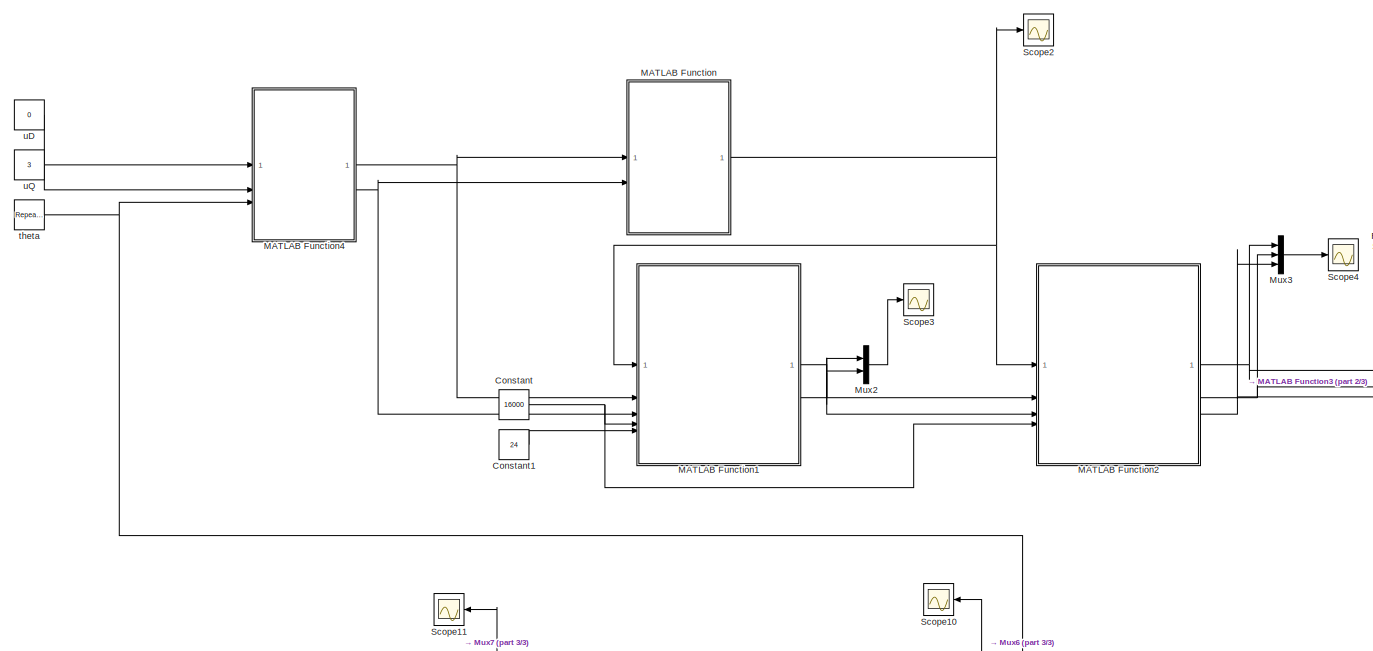
[diagram: root canvas - part 1/3, middle left region]
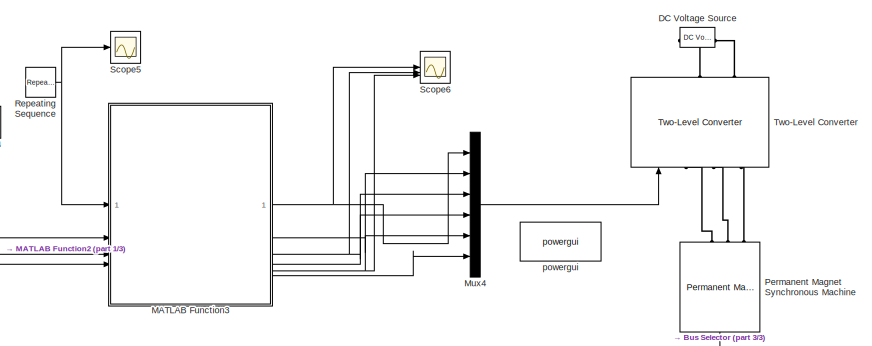
[diagram: root canvas - part 2/3, middle right region]
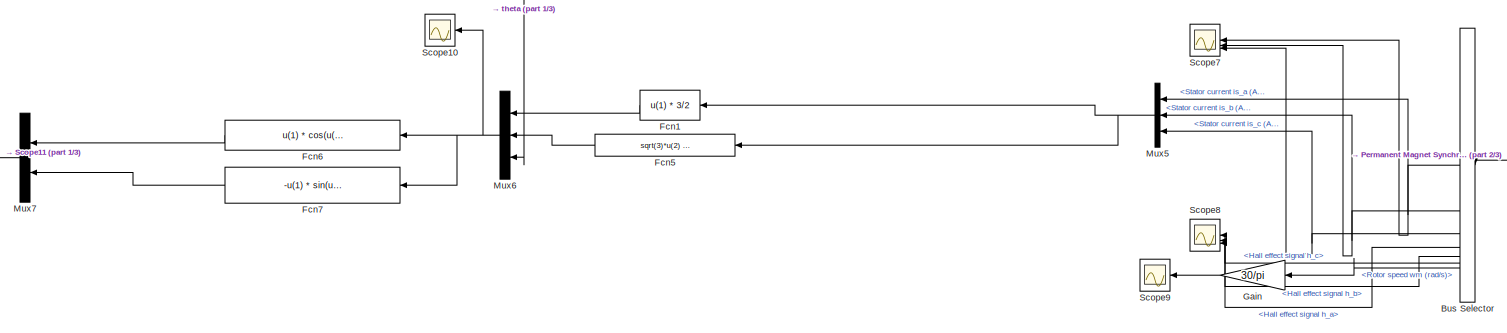
[diagram: root canvas - part 3/3, bottom center region]
MODEL slx_2b64288833d0
KIND model
CONFIG AbsTol = auto
CONFIG EnableMultiTasking = off
CONFIG FixedStep = 0.000001
CONFIG MaxStep = auto
CONFIG MinStep = auto
CONFIG RelTol = 1e-3
CONFIG SampleTimeConstraint = Unconstrained
CONFIG SolverName = FixedStepDiscrete
CONFIG StartTime = 0.0
CONFIG StopTime = 2
BLOCK [BusSelector] Bus Selector
  OutputSignals = Stator current is_a (A),Stator current is_b (A),Stator current is_c (A),Hall effect signal h_a,Hall effect signal h_b,Hall effect signal h_c,Rotor speed wm (rad/s)
BLOCK [Constant] Constant
  Value = 16000
BLOCK [Constant] Constant1
  Value = 24
BLOCK [Reference] DC Voltage Source  REF=spsDCVoltageSourceLib/DC Voltage Source
  LibrarySourceBlock = sps_lib/Sources/DC Voltage Source
  NameLocation = right
  SourceBlock = spsDCVoltageSourceLib/DC Voltage Source
  SourceType = DC Voltage Source
BLOCK [Fcn] Fcn1
  Expr = u(1) * 3/2
BLOCK [Fcn] Fcn5
  Expr = sqrt(3)*u(2) + sqrt(3)*u(1)/2
BLOCK [Fcn] Fcn6
  Expr = u(1) * cos(u(3)) + u(2)*sin(u(3))
BLOCK [Fcn] Fcn7
  Expr = -u(1) * sin(u(3)) + u(2)*cos(u(3))
BLOCK [Gain] Gain
  Gain = 30/pi
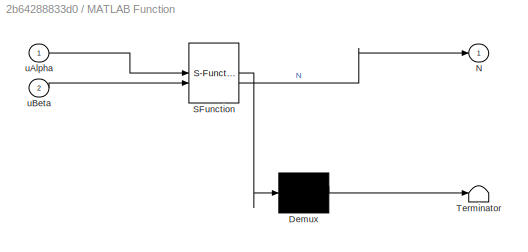
BLOCK [SubSystem] MATLAB Function
  ErrorFcn = Stateflow.Translate.translate
  PermitHierarchicalResolution = ExplicitOnly
  SFBlockType = MATLAB Function
  TreatAsAtomicUnit = on
BLOCK [Demux] MATLAB Function/ Demux 
  Outputs = 1
BLOCK [S-Function] MATLAB Function/ SFunction 
  EnableBusSupport = on
  FunctionName = sf_sfun
  PortCounts = [2 2]
  SFcnIsStateOwnerBlock = off
  SFunctionDeploymentMode = off
  Tag = Stateflow S-Function 2
BLOCK [Terminator] MATLAB Function/ Terminator 
BLOCK [Outport] MATLAB Function/N
BLOCK [Inport] MATLAB Function/uAlpha
BLOCK [Inport] MATLAB Function/uBeta
  Port = 2
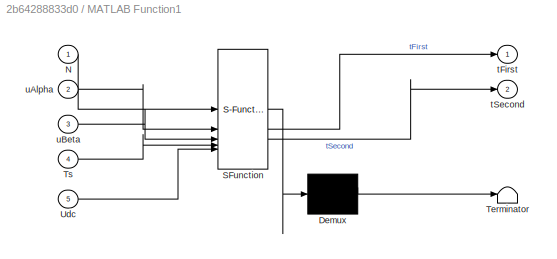
BLOCK [SubSystem] MATLAB Function1
  ErrorFcn = Stateflow.Translate.translate
  PermitHierarchicalResolution = ExplicitOnly
  SFBlockType = MATLAB Function
  TreatAsAtomicUnit = on
BLOCK [Demux] MATLAB Function1/ Demux 
  Outputs = 1
BLOCK [S-Function] MATLAB Function1/ SFunction 
  EnableBusSupport = on
  FunctionName = sf_sfun
  PortCounts = [5 3]
  SFcnIsStateOwnerBlock = off
  SFunctionDeploymentMode = off
  Tag = Stateflow S-Function 1
BLOCK [Terminator] MATLAB Function1/ Terminator 
BLOCK [Inport] MATLAB Function1/N
BLOCK [Inport] MATLAB Function1/Ts
  Port = 4
BLOCK [Inport] MATLAB Function1/Udc
  Port = 5
BLOCK [Outport] MATLAB Function1/tFirst
BLOCK [Outport] MATLAB Function1/tSecond
  Port = 2
BLOCK [Inport] MATLAB Function1/uAlpha
  Port = 2
BLOCK [Inport] MATLAB Function1/uBeta
  Port = 3
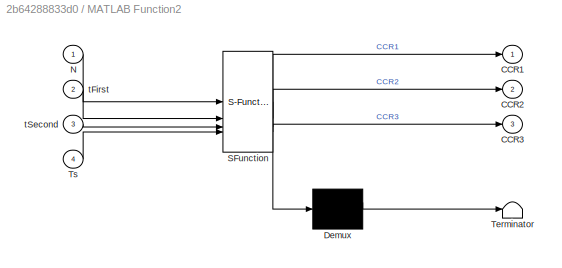
BLOCK [SubSystem] MATLAB Function2
  ErrorFcn = Stateflow.Translate.translate
  PermitHierarchicalResolution = ExplicitOnly
  SFBlockType = MATLAB Function
  TreatAsAtomicUnit = on
BLOCK [Demux] MATLAB Function2/ Demux 
  Outputs = 1
BLOCK [S-Function] MATLAB Function2/ SFunction 
  EnableBusSupport = on
  FunctionName = sf_sfun
  PortCounts = [4 4]
  SFcnIsStateOwnerBlock = off
  SFunctionDeploymentMode = off
  Tag = Stateflow S-Function 3
BLOCK [Terminator] MATLAB Function2/ Terminator 
BLOCK [Outport] MATLAB Function2/CCR1
BLOCK [Outport] MATLAB Function2/CCR2
  Port = 2
BLOCK [Outport] MATLAB Function2/CCR3
  Port = 3
BLOCK [Inport] MATLAB Function2/N
BLOCK [Inport] MATLAB Function2/Ts
  Port = 4
BLOCK [Inport] MATLAB Function2/tFirst
  Port = 2
BLOCK [Inport] MATLAB Function2/tSecond
  Port = 3
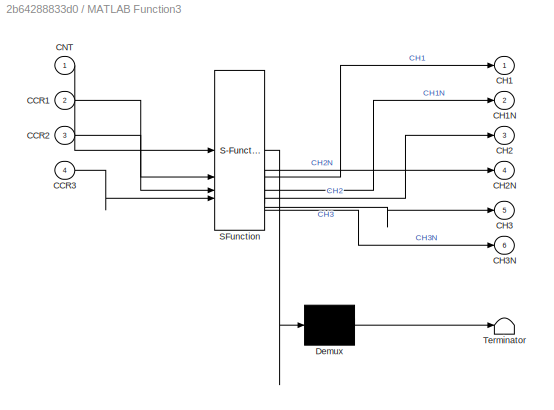
BLOCK [SubSystem] MATLAB Function3
  ErrorFcn = Stateflow.Translate.translate
  PermitHierarchicalResolution = ExplicitOnly
  SFBlockType = MATLAB Function
  TreatAsAtomicUnit = on
BLOCK [Demux] MATLAB Function3/ Demux 
  Outputs = 1
BLOCK [S-Function] MATLAB Function3/ SFunction 
  EnableBusSupport = on
  FunctionName = sf_sfun
  PortCounts = [4 7]
  SFcnIsStateOwnerBlock = off
  SFunctionDeploymentMode = off
  Tag = Stateflow S-Function 4
BLOCK [Terminator] MATLAB Function3/ Terminator 
BLOCK [Inport] MATLAB Function3/CCR1
  Port = 2
BLOCK [Inport] MATLAB Function3/CCR2
  Port = 3
BLOCK [Inport] MATLAB Function3/CCR3
  Port = 4
BLOCK [Outport] MATLAB Function3/CH1
BLOCK [Outport] MATLAB Function3/CH1N
  Port = 2
BLOCK [Outport] MATLAB Function3/CH2
  Port = 3
BLOCK [Outport] MATLAB Function3/CH2N
  Port = 4
BLOCK [Outport] MATLAB Function3/CH3
  Port = 5
BLOCK [Outport] MATLAB Function3/CH3N
  Port = 6
BLOCK [Inport] MATLAB Function3/CNT
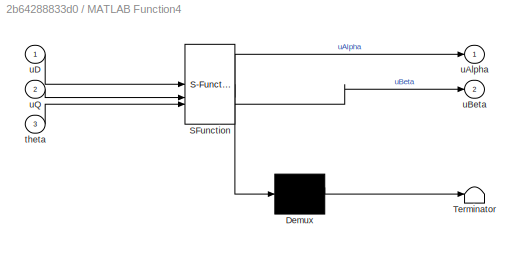
BLOCK [SubSystem] MATLAB Function4
  ErrorFcn = Stateflow.Translate.translate
  PermitHierarchicalResolution = ExplicitOnly
  SFBlockType = MATLAB Function
  TreatAsAtomicUnit = on
BLOCK [Demux] MATLAB Function4/ Demux 
  Outputs = 1
BLOCK [S-Function] MATLAB Function4/ SFunction 
  EnableBusSupport = on
  FunctionName = sf_sfun
  PortCounts = [3 3]
  SFcnIsStateOwnerBlock = off
  SFunctionDeploymentMode = off
  Tag = Stateflow S-Function 5
BLOCK [Terminator] MATLAB Function4/ Terminator 
BLOCK [Inport] MATLAB Function4/theta
  Port = 3
BLOCK [Outport] MATLAB Function4/uAlpha
BLOCK [Outport] MATLAB Function4/uBeta
  Port = 2
BLOCK [Inport] MATLAB Function4/uD
BLOCK [Inport] MATLAB Function4/uQ
  Port = 2
BLOCK [Mux] Mux2
  DisplayOption = bar
  Inputs = 2
BLOCK [Mux] Mux3
  DisplayOption = bar
  Inputs = 3
BLOCK [Mux] Mux4
  DisplayOption = bar
  Inputs = 6
BLOCK [Mux] Mux5
  DisplayOption = bar
  Inputs = 3
BLOCK [Mux] Mux6
  DisplayOption = bar
  Inputs = 3
BLOCK [Mux] Mux7
  DisplayOption = bar
  Inputs = 2
BLOCK [Reference] Permanent Magnet Synchronous Machine  REF=spsPermanentMagnetSynchronousMachineLib/Permanent Magnet
Synchronous Machine
  LibrarySourceBlock = sps_lib/Electrical Machines/Permanent Magnet\nSynchronous Machine
  NameLocation = left
  SourceBlock = spsPermanentMagnetSynchronousMachineLib/Permanent Magnet\nSynchronous Machine
  SourceType = Permanent Magnet Synchronous Machine
BLOCK [Reference] Repeating Sequence  REF=simulink/Sources/Repeating
Sequence
  SourceBlock = simulink/Sources/Repeating\nSequence
  SourceType = Repeating table
BLOCK [Scope] Scope10
  Floating = off
  NumInputPorts = 1
  ScopeSpecificationString = Simulink.scopes.TimeScopeBlockCfg('CurrentConfiguration', extmgr.ConfigurationSet(extmgr.Configuration('Core','General UI',true),extmgr.Configuration('Core','Source UI',true),extmgr.Configuration('Sources','WiredSimulink',true,'DataLoggingVariableName','ScopeData5'),extmgr.Configuration('Visuals','Time Domain',true,'SerializedDisplays',{struct('MinYLimReal','-100','MaxYLimReal','100','YLabelReal',...<+1417ch>
BLOCK [Scope] Scope11
  Floating = off
  NumInputPorts = 1
  ScopeSpecificationString = Simulink.scopes.TimeScopeBlockCfg('CurrentConfiguration', extmgr.ConfigurationSet(extmgr.Configuration('Core','General UI',true),extmgr.Configuration('Core','Source UI',true),extmgr.Configuration('Sources','WiredSimulink',true,'DataLoggingVariableName','ScopeData6'),extmgr.Configuration('Visuals','Time Domain',true,'SerializedDisplays',{struct('MinYLimReal','-100','MaxYLimReal','100','YLabelReal',...<+1408ch>
BLOCK [Scope] Scope2
  Floating = off
  NumInputPorts = 1
  ScopeSpecificationString = Simulink.scopes.TimeScopeBlockCfg('CurrentConfiguration', extmgr.ConfigurationSet(extmgr.Configuration('Core','General UI',true),extmgr.Configuration('Core','Source UI',true),extmgr.Configuration('Sources','WiredSimulink',true,'DataLoggingVariableName','ScopeData2'),extmgr.Configuration('Visuals','Time Domain',true,'SerializedDisplays',{struct('MinYLimReal','0.375','MaxYLimReal','6.625','YLabelRea...<+1411ch>
BLOCK [Scope] Scope3
  Floating = off
  NumInputPorts = 1
  ScopeSpecificationString = Simulink.scopes.TimeScopeBlockCfg('CurrentConfiguration', extmgr.ConfigurationSet(extmgr.Configuration('Core','General UI',true),extmgr.Configuration('Core','Source UI',true),extmgr.Configuration('Sources','WiredSimulink',true,'DataLoggingVariableName','ScopeData3'),extmgr.Configuration('Visuals','Time Domain',true,'SerializedDisplays',{struct('MinYLimReal','-187.5','MaxYLimReal','1687.5','YLabelR...<+1430ch>
BLOCK [Scope] Scope4
  Floating = off
  NumInputPorts = 1
  ScopeSpecificationString = Simulink.scopes.TimeScopeBlockCfg('CurrentConfiguration', extmgr.ConfigurationSet(extmgr.Configuration('Core','General UI',true),extmgr.Configuration('Core','Source UI',true),extmgr.Configuration('Sources','WiredSimulink',true,'DataLoggingVariableName','ScopeData1'),extmgr.Configuration('Visuals','Time Domain',true,'SerializedDisplays',{struct('MinYLimReal','1458.73412','MaxYLimReal','2541.26588',...<+1531ch>
BLOCK [Scope] Scope5
  Floating = off
  NumInputPorts = 1
  ScopeSpecificationString = Simulink.scopes.TimeScopeBlockCfg('CurrentConfiguration', extmgr.ConfigurationSet(extmgr.Configuration('Core','General UI',true),extmgr.Configuration('Core','Source UI',true),extmgr.Configuration('Sources','WiredSimulink',true,'DataLoggingVariableName','ScopeData2'),extmgr.Configuration('Visuals','Time Domain',true,'SerializedDisplays',{struct('MinYLimReal','-447.35198','MaxYLimReal','8927.64802',...<+1441ch>
BLOCK [Scope] Scope6
  Floating = off
  NumInputPorts = 3
  ScopeSpecificationString = Simulink.scopes.TimeScopeBlockCfg('CurrentConfiguration', extmgr.ConfigurationSet(extmgr.Configuration('Core','General UI',true),extmgr.Configuration('Core','Source UI',true),extmgr.Configuration('Sources','WiredSimulink',true,'DataLoggingVariableName','ScopeData1'),extmgr.Configuration('Visuals','Time Domain',true,'SerializedDisplays',{struct('MinYLimReal','0.00000','MaxYLimReal','2.00000','YLabe...<+2876ch>
BLOCK [Scope] Scope7
  Floating = off
  NumInputPorts = 3
  ScopeSpecificationString = Simulink.scopes.TimeScopeBlockCfg('CurrentConfiguration', extmgr.ConfigurationSet(extmgr.Configuration('Core','General UI',true),extmgr.Configuration('Core','Source UI',true),extmgr.Configuration('Sources','WiredSimulink',true,'DataLoggingVariableName','ScopeData2'),extmgr.Configuration('Visuals','Time Domain',true,'SerializedDisplays',{struct('MinYLimReal','-54.06556','MaxYLimReal','60.82321','YL...<+1473ch>
BLOCK [Scope] Scope8
  Floating = off
  NumInputPorts = 3
  ScopeSpecificationString = Simulink.scopes.TimeScopeBlockCfg('CurrentConfiguration', extmgr.ConfigurationSet(extmgr.Configuration('Core','General UI',true),extmgr.Configuration('Core','Source UI',true),extmgr.Configuration('Sources','WiredSimulink',true,'DataLoggingVariableName','ScopeData3'),extmgr.Configuration('Visuals','Time Domain',true,'SerializedDisplays',{struct('MinYLimReal','-0.125','MaxYLimReal','1.125','YLabelRe...<+1425ch>
BLOCK [Scope] Scope9
  Floating = off
  NumInputPorts = 1
  ScopeSpecificationString = Simulink.scopes.TimeScopeBlockCfg('CurrentConfiguration', extmgr.ConfigurationSet(extmgr.Configuration('Core','General UI',true),extmgr.Configuration('Core','Source UI',true),extmgr.Configuration('Sources','WiredSimulink',true,'DataLoggingVariableName','ScopeData4'),extmgr.Configuration('Visuals','Time Domain',true,'SerializedDisplays',{struct('MinYLimReal','0','MaxYLimReal','100','YLabelReal','',...<+1395ch>
BLOCK [Reference] Two-Level Converter  REF=spsTwoLevelConverterLib/Two-Level Converter
  LibrarySourceBlock = sps_lib/Power Electronics/Two-Level Converter
  NameLocation = right
  SourceBlock = spsTwoLevelConverterLib/Two-Level Converter
  SourceType = Two-Level Converter
BLOCK [Reference] powergui  REF=sps_lib/powergui
  LibrarySourceBlock = sps_lib/powergui
  Priority = 1
  SourceBlock = sps_lib/powergui
  SourceType = PSB option menu block
BLOCK [Reference] theta   REF=simulink/Sources/Repeating
Sequence
  SourceBlock = simulink/Sources/Repeating\nSequence
  SourceType = Repeating table
BLOCK [Constant] uD
  Value = 0
BLOCK [Constant] uQ
  Value = 3
NET Bus Selector:1 -> Mux5:1, Scope7:1
NET Bus Selector:2 -> Mux5:2, Scope7:2
NET Bus Selector:3 -> Mux5:3, Scope7:3
LINE Bus Selector:4 -> Scope8:1
LINE Bus Selector:5 -> Scope8:2
LINE Bus Selector:6 -> Scope8:3
LINE Bus Selector:7 -> Gain:1
LINE Constant1:1 -> MATLAB Function1:5
NET Constant:1 -> MATLAB Function1:4, MATLAB Function2:4
LINE Fcn1:1 -> Mux6:1
LINE Fcn5:1 -> Mux6:2
LINE Fcn6:1 -> Mux7:1
LINE Fcn7:1 -> Mux7:2
LINE Gain:1 -> Scope9:1
NET MATLAB Function1:1 -> MATLAB Function2:2, Mux2:1
NET MATLAB Function1:2 -> MATLAB Function2:3, Mux2:2
NET MATLAB Function2:1 -> MATLAB Function3:2, Mux3:1
NET MATLAB Function2:2 -> MATLAB Function3:3, Mux3:2
NET MATLAB Function2:3 -> MATLAB Function3:4, Mux3:3
NET MATLAB Function3:1 -> Mux4:1, Scope6:1
LINE MATLAB Function3:2 -> Mux4:2
NET MATLAB Function3:3 -> Mux4:3, Scope6:2
LINE MATLAB Function3:4 -> Mux4:4
NET MATLAB Function3:5 -> Mux4:5, Scope6:3
LINE MATLAB Function3:6 -> Mux4:6
NET MATLAB Function4:1 -> MATLAB Function1:2, MATLAB Function:1
NET MATLAB Function4:2 -> MATLAB Function1:3, MATLAB Function:2
NET MATLAB Function:1 -> MATLAB Function1:1, MATLAB Function2:1, Scope2:1
LINE Mux2:1 -> Scope3:1
LINE Mux3:1 -> Scope4:1
LINE Mux4:1 -> Two-Level Converter:1
NET Mux5:1 -> Fcn1:1, Fcn5:1
NET Mux6:1 -> Fcn6:1, Fcn7:1, Scope10:1
LINE Mux7:1 -> Scope11:1
LINE Permanent Magnet Synchronous Machine:1 -> Bus Selector:1
NET Repeating Sequence:1 -> MATLAB Function3:1, Scope5:1
NET theta :1 -> MATLAB Function4:3, Mux6:3
LINE uD:1 -> MATLAB Function4:1
LINE uQ:1 -> MATLAB Function4:2
PLINE DC Voltage Source:LConn1 -- Two-Level Converter:RConn2
PLINE DC Voltage Source:RConn1 -- Two-Level Converter:RConn1
PLINE Permanent Magnet Synchronous Machine:LConn1 -- Two-Level Converter:LConn1
PLINE Permanent Magnet Synchronous Machine:LConn2 -- Two-Level Converter:LConn2
PLINE Permanent Magnet Synchronous Machine:LConn3 -- Two-Level Converter:LConn3
note: NET lines group one-source signal fan-out (src -> all destinations, sorted); 1:1 wires keep LINE
CHART MATLAB Function1 states=1 transitions=1
  STATE_LABEL 'eML_blk_kernel()'
  STATE_LABEL 'SCRIPT:\nfunction [tFirst, tSecond] = vectorCalculate(N, uAlpha, uBeta, Ts, Udc)\n\ntFirst = 0;\ntSecond = 0;\n\nX = sqrt(3)*Ts*uBeta/Udc;\nY = sqrt(3)*Ts/Udc*(sqrt(3)*uAlpha/2+uBeta/2);\nZ = sqrt(3)*Ts/Udc*(-sqrt(3)*uAlpha/2+uBeta/2);\n\nif (N == 1)\n    tFirst = Z;\n    tSecond = Y;\nend\n\nif (N==2)\n    tFirst = Y;\n    tSecond = -X;\nend\n\nif (N==3)\n    tFirst =-Z;\n    tSecond = X;\nend\n\nif (N==4)\n    tFirst =-X...<+120ch>'
CHART MATLAB Function states=1 transitions=1
  STATE_LABEL 'eML_blk_kernel()'
  STATE_LABEL 'SCRIPT:\n\nfunction N = sectorJudge(uAlpha, uBeta)\n\nu1 = uBeta;\nu2 = sqrt(3)/2*uAlpha - 1/2*uBeta;\nu3 = -sqrt(3)/2*uAlpha - 1/2*uBeta;\n\nN = 0;\nif (u1 > 0)\n    N = N+1;\nend;\n\nif (u2 > 0)\n    N = N+2;\nend;\n\nif (u3 > 0)\n    N = N+4;\nend;\n\n'
CHART MATLAB Function2 states=1 transitions=1
  STATE_LABEL 'eML_blk_kernel()'
  STATE_LABEL 'SCRIPT:\nfunction [CCR1, CCR2, CCR3] =  CCR_calculate(N, tFirst, tSecond,  Ts)\n\nCCR1 = 0;\nCCR2 = 0;\nCCR3 = 0;\n\nt = tFirst + tSecond;\nif (t > Ts)\n    tFirst = tFirst/t * Ts;\n    tSecond = tSecond / t * Ts;\nend\n\nvalue1 = (Ts - tFirst - tSecond) /4;  % vector 0 or 7 \nvalue2 = value1 + tFirst / 2;\nvalue3 = value2 + tSecond / 2;\n\nswitch(N)\n    case 3\n        CCR1 = value1;\n        CCR2 = value2;\n       ...<+425ch>'
CHART MATLAB Function3 states=1 transitions=1
  STATE_LABEL 'eML_blk_kernel()'
  STATE_LABEL 'SCRIPT:\nfunction [CH1, CH1N, CH2, CH2N,CH3, CH3N] =  PWM_generate(CNT,CCR1, CCR2,  CCR3)\n\nCH1 = 0;\nCH1N = 0;\nCH2 = 0;\nCH2N = 0;\nCH3 = 0;\nCH3N = 0;\n\nif (CNT > CCR1)\n    CH1 = 1;\n    CH1N = 0;\nelse\n    CH1 = 0;\n    CH1N = 1;\nend\n\nif (CNT > CCR2)\n    CH2 = 1;\n    CH2N = 0;\nelse\n    CH2 = 0;\n    CH2N = 1;\nend\n\n\nif (CNT > CCR3)\n    CH3 = 1;\n    CH3N = 0;\nelse\n    CH3 = 0;\n    CH3N = 1;\nend\n\n'
CHART MATLAB Function4 states=1 transitions=1
  STATE_LABEL 'eML_blk_kernel()'
  STATE_LABEL 'SCRIPT:\nfunction [uAlpha, uBeta] = revPark(uD, uQ, theta)\n\n\nuAlpha = 0;\nuBeta = 0;\n\nuAlpha = cos(theta) * uD - sin(theta) *uQ;\nuBeta = sin(theta) * uD + cos(theta) * uQ;\n\n\n'
CHART  states=0 transitions=0
CHART  states=0 transitions=0
CHART  states=0 transitions=0
CHART  states=0 transitions=0
CHART  states=0 transitions=0
